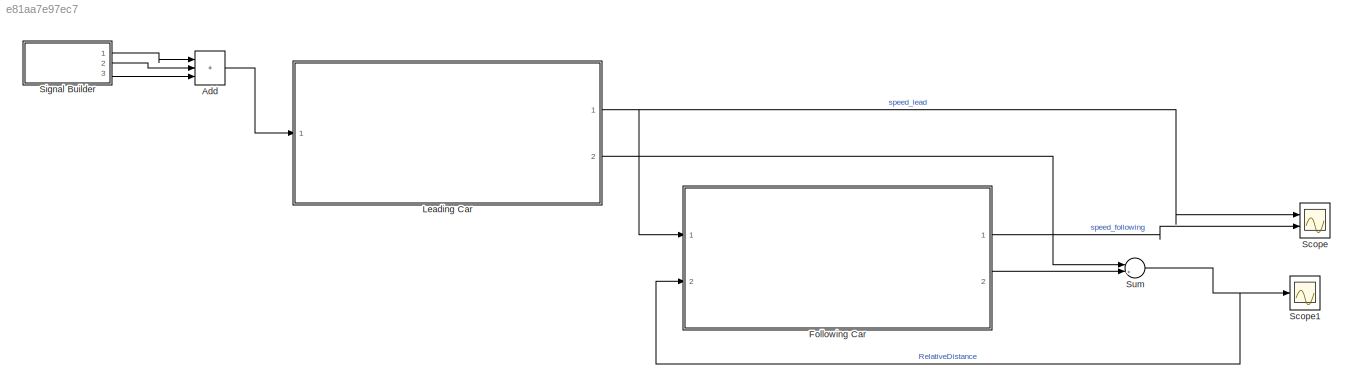
MODEL slx_e81aa7e97ec7
KIND model
CONFIG AbsTol = auto
CONFIG EnableMultiTasking = off
CONFIG FixedStep = auto
CONFIG MaxStep = auto
CONFIG MinStep = auto
CONFIG PreLoadFcn = Vref=10;\nV_lead_ini=20;\nPos_lead_ini=100;\nVset=30;\nTg=1.4;\nV_follow_ini=30;\npos_follow_ini=0;
CONFIG RelTol = 1e-3
CONFIG SampleTimeConstraint = Unconstrained
CONFIG SolverName = ode45
CONFIG StartTime = 0.0
CONFIG StopTime = 100
BLOCK [Sum] Add
  IconShape = rectangular
  Inputs = +++
  Ports = [3, 1]
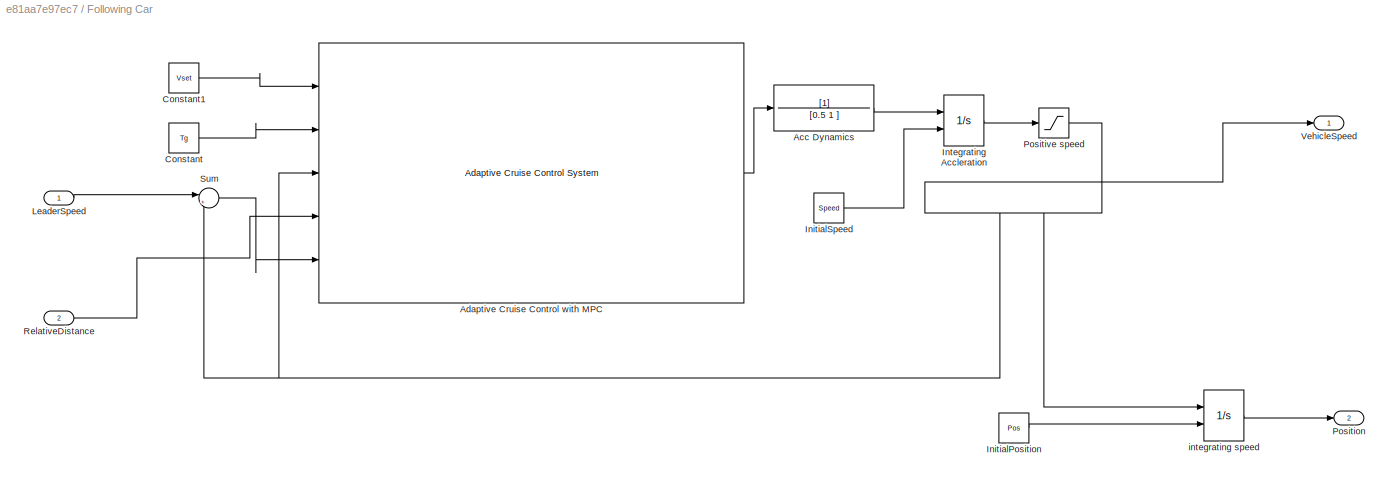
BLOCK [SubSystem] Following Car
  Ports = [2, 2]
  RequestExecContextInheritance = off
BLOCK [TransferFcn] Following Car/Acc Dynamics
  Denominator = [0.5 1 ]
BLOCK [Reference] Following Car/Adaptive Cruise Control with MPC   REF=mpcadaslib/Adaptive Cruise Control System
  Ports = [5, 1]
  SourceBlock = mpcadaslib/Adaptive Cruise Control System
  SourceProductBaseCode = MP
  SourceType = Adaptive cruise control (ACC) system
BLOCK [Constant] Following Car/Constant
  Value = Tg
BLOCK [Constant] Following Car/Constant1
  Value = Vset
BLOCK [Constant] Following Car/InitialPosition
  Value = Pos
BLOCK [Constant] Following Car/InitialSpeed
  Value = Speed
BLOCK [Integrator] Following Car/Integrating Accleration
  InitialConditionSource = external
  Ports = [2, 1]
BLOCK [Inport] Following Car/LeaderSpeed
BLOCK [Outport] Following Car/Position
  Port = 2
BLOCK [Saturate] Following Car/Positive speed
  LowerLimit = 0
  UpperLimit = inf
BLOCK [Inport] Following Car/RelativeDistance
  Port = 2
BLOCK [Sum] Following Car/Sum
  Inputs = |+-
  Ports = [2, 1]
BLOCK [Outport] Following Car/VehicleSpeed
BLOCK [Integrator] Following Car/integrating speed
  InitialConditionSource = external
  Ports = [2, 1]
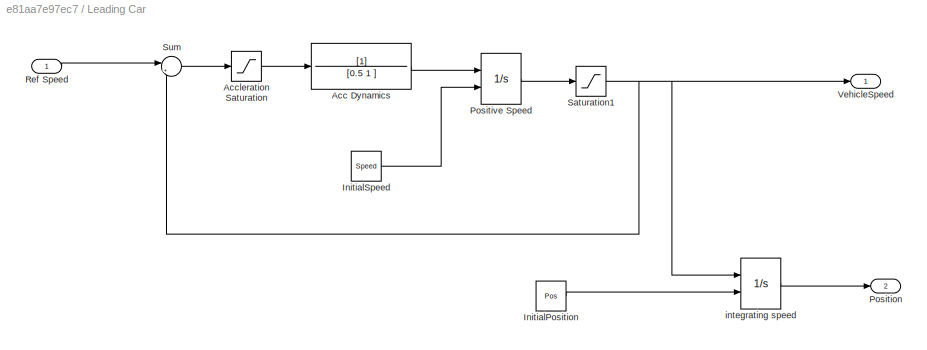
BLOCK [SubSystem] Leading Car
  Ports = [1, 2]
  RequestExecContextInheritance = off
BLOCK [TransferFcn] Leading Car/Acc Dynamics
  Denominator = [0.5 1 ]
BLOCK [Saturate] Leading Car/Accleration Saturation
  LowerLimit = -3
  UpperLimit = 2
BLOCK [Constant] Leading Car/InitialPosition
  Value = Pos
BLOCK [Constant] Leading Car/InitialSpeed
  Value = Speed
BLOCK [Outport] Leading Car/Position
  Port = 2
BLOCK [Integrator] Leading Car/Positive Speed
  InitialConditionSource = external
  Ports = [2, 1]
BLOCK [Inport] Leading Car/Ref Speed
BLOCK [Saturate] Leading Car/Saturation1
  LowerLimit = 0
  UpperLimit = inf
BLOCK [Sum] Leading Car/Sum
  Inputs = |+-
  Ports = [2, 1]
BLOCK [Outport] Leading Car/VehicleSpeed
BLOCK [Integrator] Leading Car/integrating speed
  InitialConditionSource = external
  Ports = [2, 1]
BLOCK [Scope] Scope
  Floating = off
  NumInputPorts = 2
  Ports = [2]
  ScopeSpecificationString = Simulink.scopes.TimeScopeBlockCfg('CurrentConfiguration', extmgr.ConfigurationSet(extmgr.Configuration('Core','General UI',true),extmgr.Configuration('Core','Source UI',true),extmgr.Configuration('Sources','WiredSimulink',true),extmgr.Configuration('Visuals','Time Domain',true,'SerializedDisplays',{struct('MinYLimReal','2.73391','MaxYLimReal','33.45074','YLabelReal','','MinYLimMag','2.73391','MaxY...<+1404ch>
BLOCK [Scope] Scope1
  Floating = off
  NumInputPorts = 1
  Ports = [1]
  ScopeSpecificationString = Simulink.scopes.TimeScopeBlockCfg('CurrentConfiguration', extmgr.ConfigurationSet(extmgr.Configuration('Core','General UI',true),extmgr.Configuration('Core','Source UI',true),extmgr.Configuration('Sources','WiredSimulink',true,'DataLoggingVariableName','ScopeData1'),extmgr.Configuration('Visuals','Time Domain',true,'SerializedDisplays',{struct('MinYLimReal','9.14697','MaxYLimReal','110.09478','YLa...<+1381ch>
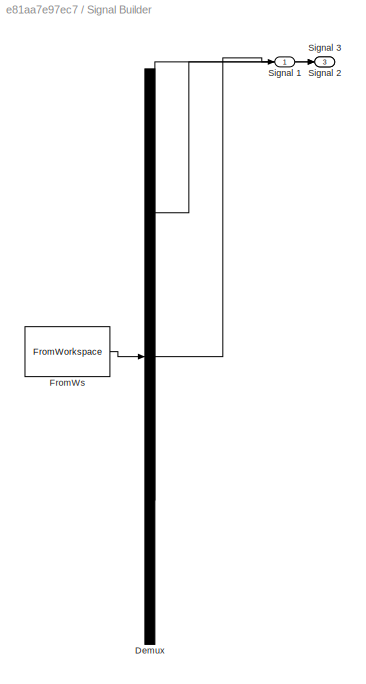
BLOCK [SubSystem] Signal Builder
  ClipboardFcn = sigbuilder_block('clipboard');
  CloseFcn = sigbuilder_block('close');
  ContinueFcn = sigbuilder_block('continue');
  CopyFcn = sigbuilder_block('copy');
  DeleteFcn = sigbuilder_block('delete');
  LoadFcn = sigbuilder_block('load');
  MaskHideContents = on
  ModelCloseFcn = sigbuilder_block('modelClose');
  NameChangeFcn = sigbuilder_block('namechange');
  OpenFcn = sigbuilder_block('open',[5.4 30 1141.2 522.6 ]);
  PauseFcn = sigbuilder_block('pause');
  Ports = [0, 3]
  PreSaveFcn = sigbuilder_block('preSave');
  RequestExecContextInheritance = off
  StartFcn = sigbuilder_block('start');
  StopFcn = sigbuilder_block('stop');
  Tag = STV Subsys
BLOCK [Demux] Signal Builder/Demux
  DisplayOption = none
  Outputs = 3
  Ports = [1, 3]
  Tag = STV Demux
BLOCK [FromWorkspace] Signal Builder/FromWs
  Tag = STV FromWs
  VariableName = tuvar
BLOCK [Outport] Signal Builder/Signal 1
  Tag = STV Outport
BLOCK [Outport] Signal Builder/Signal 2
  Port = 2
  Tag = STV Outport
BLOCK [Outport] Signal Builder/Signal 3
  Port = 3
  Tag = STV Outport
BLOCK [Sum] Sum
  Inputs = |+-
  Ports = [2, 1]
LINE Add:1 -> Leading Car:1
LINE Following Car/Acc Dynamics:1 -> Following Car/Integrating Accleration:1
LINE Following Car/Adaptive Cruise Control with MPC :1 -> Following Car/Acc Dynamics:1
LINE Following Car/Constant1:1 -> Following Car/Adaptive Cruise Control with MPC :1
LINE Following Car/Constant:1 -> Following Car/Adaptive Cruise Control with MPC :2
LINE Following Car/InitialPosition:1 -> Following Car/integrating speed:2
LINE Following Car/InitialSpeed:1 -> Following Car/Integrating Accleration:2
LINE Following Car/Integrating Accleration:1 -> Following Car/Positive speed:1
LINE Following Car/LeaderSpeed:1 -> Following Car/Sum:1
NET Following Car/Positive speed:1 -> Following Car/Adaptive Cruise Control with MPC :3, Following Car/Sum:2, Following Car/VehicleSpeed:1, Following Car/integrating speed:1
LINE Following Car/RelativeDistance:1 -> Following Car/Adaptive Cruise Control with MPC :4
LINE Following Car/Sum:1 -> Following Car/Adaptive Cruise Control with MPC :5
LINE Following Car/integrating speed:1 -> Following Car/Position:1
LINE Following Car:1 -> Scope:2
LINE Following Car:2 -> Sum:2
LINE Leading Car/Acc Dynamics:1 -> Leading Car/Positive Speed:1
LINE Leading Car/Accleration Saturation:1 -> Leading Car/Acc Dynamics:1
LINE Leading Car/InitialPosition:1 -> Leading Car/integrating speed:2
LINE Leading Car/InitialSpeed:1 -> Leading Car/Positive Speed:2
LINE Leading Car/Positive Speed:1 -> Leading Car/Saturation1:1
LINE Leading Car/Ref Speed:1 -> Leading Car/Sum:1
NET Leading Car/Saturation1:1 -> Leading Car/Sum:2, Leading Car/VehicleSpeed:1, Leading Car/integrating speed:1
LINE Leading Car/Sum:1 -> Leading Car/Accleration Saturation:1
LINE Leading Car/integrating speed:1 -> Leading Car/Position:1
NET Leading Car:1 -> Following Car:1, Scope:1
LINE Leading Car:2 -> Sum:1
LINE Signal Builder:1 -> Add:1
LINE Signal Builder:2 -> Add:2
LINE Signal Builder:3 -> Add:3
NET Sum:1 -> Following Car:2, Scope1:1
note: NET lines group one-source signal fan-out (src -> all destinations, sorted); 1:1 wires keep LINE
